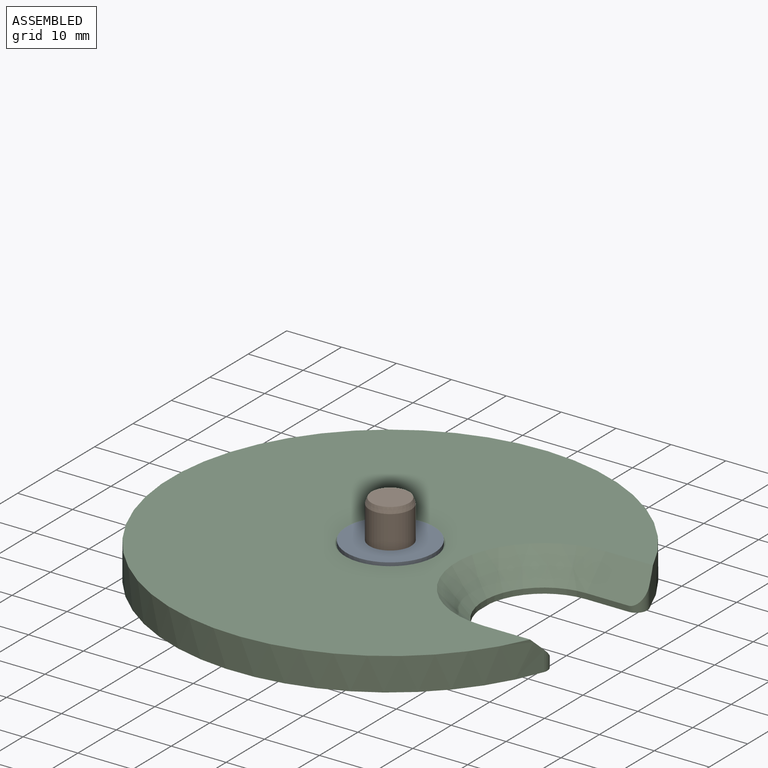
[diagram: assembled view]
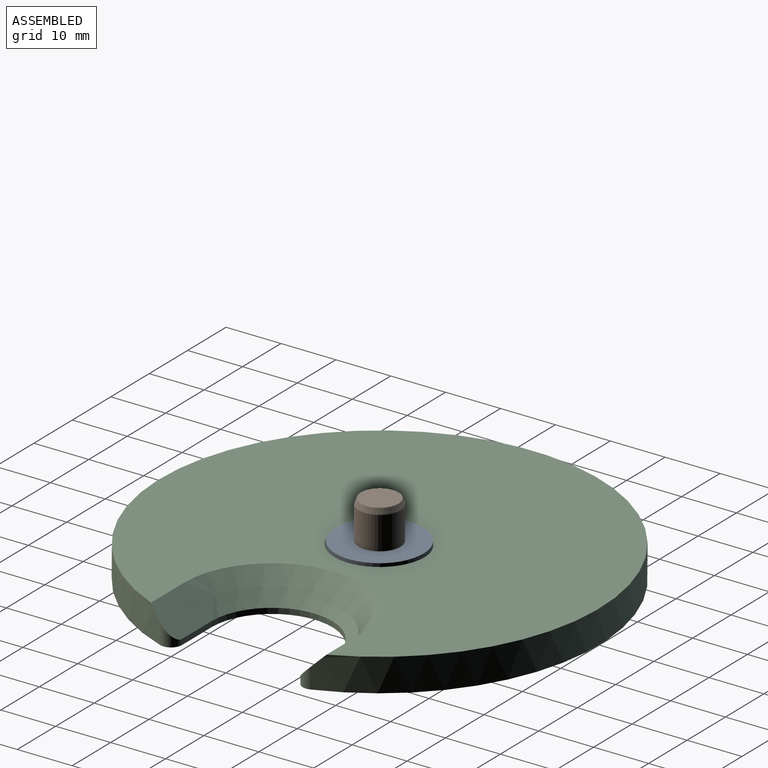
[diagram: assembled view, second angle]
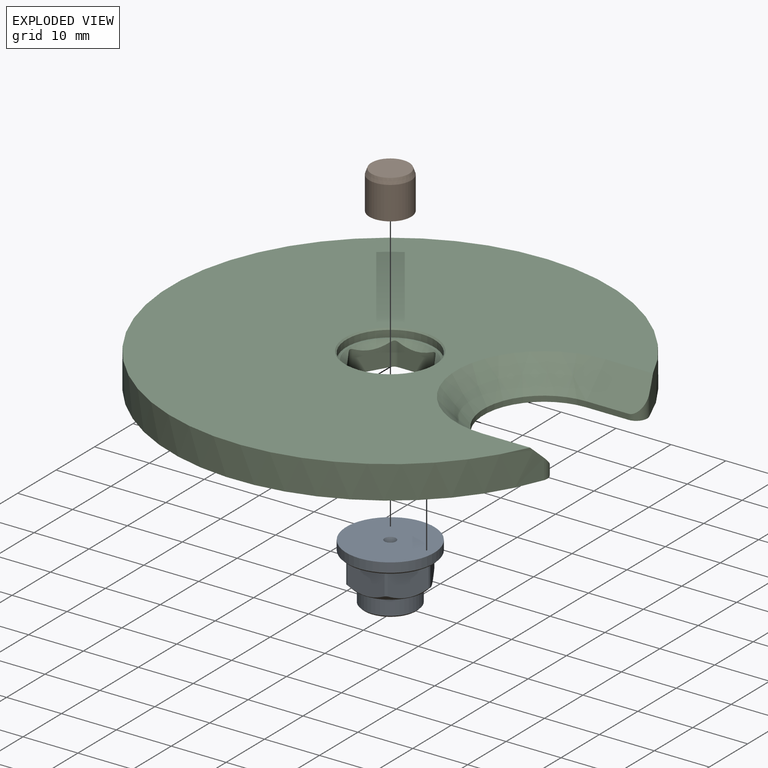
[diagram: exploded view]
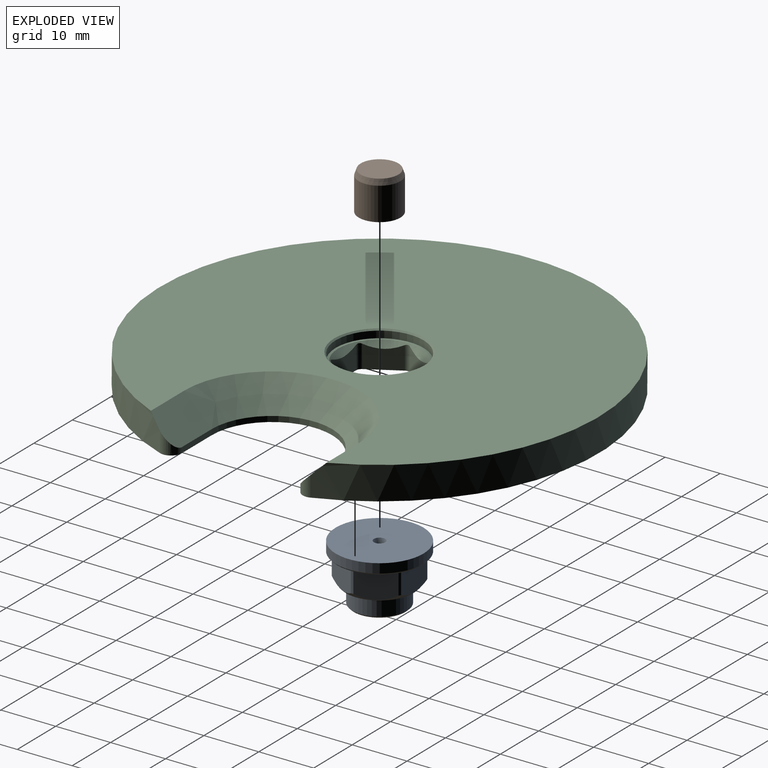
[diagram: exploded view, second angle]
ASSEMBLY  parts=3 mates=2
PART A: 34 faces, bbox 16x10.5x16 mm
  f0: cylinder r=7.15mm len=3.9mm, axis (0,-1,0), area 1.7mm2, adj f6,f17,f22,f25
  f1: cylinder r=7.15mm len=3.9mm, axis (0,-1,0), area 1.7mm2, adj f6,f21,f22,f26
  f2: cylinder r=7.15mm len=3.9mm, axis (0,-1,0), area 1.7mm2, adj f6,f20,f21,f27
  f3: cylinder r=7.15mm len=3.9mm, axis (0,-1,0), area 1.7mm2, adj f6,f19,f20,f28
  f4: cylinder r=7.15mm len=3.9mm, axis (0,-1,0), area 1.7mm2, adj f6,f18,f19,f23
  f5: cylinder r=7.15mm len=3.9mm, axis (0,-1,0), area 1.7mm2, adj f6,f17,f18,f24
  f6: cone r=6.15mm half-angle=45deg, axis (0,1,0), area 26.2mm2, adj f0,f1,f2,f3,f4,f5,f12,f17
  f7: plane 1x1mm, normal (0,1,0), area 0.8mm2, adj f8
  f8: cone r=1.05mm half-angle=20deg, axis (0,1,0), area 7.8mm2, adj f7,f9
  f9: plane 16x16mm, normal (0,1,0), area 197.6mm2, adj f8,f10
  f10: cylinder r=8mm len=16mm, axis (0,-1,0), area 85.5mm2, adj f9,f15
  f11: plane 15.4x15.4mm, normal (0,-1,0), area 48.8mm2, adj f15,f17,f18,f19,f20,f21,f22,f23
  f12: plane 12.3x12.3mm, normal (0,-1,0), area 37.1mm2, adj f6,f29
  f13: cylinder r=5mm len=10mm, axis (0,-1,0), area 97.4mm2, adj f16,f29
  f14: plane 9.4x9.4mm, normal (0,-1,0), area 53.5mm2, adj f16,f30
  f15: cone r=7.7mm half-angle=45deg, axis (0,1,0), area 20.9mm2, adj f10,f11
  f16: cone r=4.7mm half-angle=45deg, axis (0,1,0), area 12.9mm2, adj f13,f14
  f17: plane 6.26x4.91mm, normal (-0.87,0,0.5), area 30.8mm2, adj f0,f5,f6,f11,f24,f25
  f18: plane 6.26x4.91mm, normal (-0.87,0,-0.5), area 30.8mm2, adj f4,f5,f6,f11,f23,f24
  f19: plane 7.22x4.9mm, normal (0,0,-1), area 30.8mm2, adj f3,f4,f6,f11,f23,f28
  f20: plane 6.26x4.91mm, normal (0.87,0,-0.5), area 30.8mm2, adj f2,f3,f6,f11,f27,f28
  f21: plane 6.26x4.91mm, normal (0.87,0,0.5), area 30.8mm2, adj f1,f2,f6,f11,f26,f27
  f22: plane 7.22x4.9mm, normal (0,0,1), area 30.8mm2, adj f0,f1,f6,f11,f25,f26
  f23: torus R=7.25mm, axis (0,-1,0), area 0mm2, adj f4,f11,f18,f19
  f24: torus R=7.25mm, axis (0,-1,0), area 0mm2, adj f5,f11,f17,f18
  f25: torus R=7.25mm, axis (0,-1,0), area 0mm2, adj f0,f11,f17,f22
  f26: torus R=7.25mm, axis (0,-1,0), area 0mm2, adj f1,f11,f21,f22
  f27: torus R=7.25mm, axis (0,-1,0), area 0mm2, adj f2,f11,f20,f21
  f28: torus R=7.25mm, axis (0,-1,0), area 0mm2, adj f3,f11,f19,f20
  f29: torus R=5.1mm, axis (0,-1,0), area 5mm2, adj f12,f13
  f30: cone r=0mm half-angle=45deg, axis (0,-1,0), area 5.1mm2, adj f14,f32,f33
  f31: plane 4.1x3.6mm, normal (0,-1,0), area 12.3mm2, adj f32,f33
  f32: plane 8.3x2.69mm, normal (0,0,-1), area 21.4mm2, adj f30,f31,f33
  f33: cylinder r=2.05mm len=8.3mm, axis (0,-1,0), area 82.6mm2, adj f30,f31,f32
PART B: 6 faces, bbox 7.6x8.4x7.6 mm
  f0: plane 6.87x6.87mm, normal (0,1,0), area 37.1mm2, adj f5
  f1: cylinder r=3.8mm len=7.6mm, axis (0,-1,0), area 143.3mm2, adj f2,f5
  f2: plane 7.6x7.6mm, normal (0,-1,0), area 42.2mm2, adj f1,f3
  f3: cone r=1.01mm half-angle=20deg, axis (0,1,0), area 7.1mm2, adj f2,f4
  f4: plane 1x1mm, normal (0,-1,0), area 0.8mm2, adj f3
  f5: cone r=3.8mm half-angle=20deg, axis (0,-1,0), area 24.2mm2, adj f0,f1
PART C: 27 faces, bbox 77.7x6x80 mm
  f0: cylinder r=40mm len=80mm, axis (0,-1,0), area 1334.6mm2, adj f1,f2,f22,f24,f25,f26
  f1: plane 80x76.66mm, normal (0,1,0), area 4061.6mm2, adj f0,f6,f22,f23,f24
  f2: plane 80x77.71mm, normal (0,-1,0), area 4434.1mm2, adj f0,f7,f8,f9,f10,f11,f12,f13
  f3: cone r=7.55mm half-angle=45deg, axis (0,1,0), area 47.4mm2, adj f4,f7,f8,f9,f10,f11,f12,f13
  f4: plane 16x16mm, normal (0,1,0), area 22mm2, adj f3,f5
  f5: cylinder r=8mm len=16mm, axis (0,-1,0), area 62.8mm2, adj f4,f6
  f6: cone r=8.25mm half-angle=45deg, axis (0,1,0), area 18mm2, adj f1,f5
  f7: plane 5.51x4.19mm, normal (-0.87,0,-0.5), area 23.5mm2, adj f2,f3,f13,f18
  f8: plane 6.36x4.19mm, normal (0,0,-1), area 23.5mm2, adj f2,f3,f13,f14
  f9: plane 5.51x4.19mm, normal (0.87,0,-0.5), area 23.5mm2, adj f2,f3,f14,f15
  f10: plane 5.51x4.19mm, normal (0.87,0,0.5), area 23.5mm2, adj f2,f3,f15,f16
  f11: plane 6.36x4.19mm, normal (0,0,1), area 23.5mm2, adj f2,f3,f16,f17
  f12: plane 5.51x4.19mm, normal (-0.87,0,0.5), area 23.5mm2, adj f2,f3,f17,f18
  f13: cylinder r=1mm len=4.18mm, axis (0,1,0), area 4.4mm2, adj f2,f3,f7,f8
  f14: cylinder r=1mm len=4.18mm, axis (0,1,0), area 4.4mm2, adj f2,f3,f8,f9
  f15: cylinder r=1mm len=4.18mm, axis (0,1,0), area 4.4mm2, adj f2,f3,f9,f10
  f16: cylinder r=1mm len=4.18mm, axis (0,1,0), area 4.4mm2, adj f2,f3,f10,f11
  f17: cylinder r=1mm len=4.18mm, axis (0,1,0), area 4.4mm2, adj f2,f3,f11,f12
  f18: cylinder r=1mm len=4.18mm, axis (0,1,0), area 4.4mm2, adj f2,f3,f7,f12
  f19: plane 7.71x1mm, normal (0,0,-1), area 7.7mm2, adj f2,f21,f22,f25
  f20: plane 7.71x1mm, normal (0,0,1), area 7.7mm2, adj f2,f21,f24,f26
  f21: cylinder r=11mm len=22mm, axis (0,1,0), area 34.6mm2, adj f2,f19,f20,f23
  f22: plane 9.72x5.01mm, normal (0,0.71,-0.71), area 65.5mm2, adj f0,f1,f19,f23,f25
  f23: cone r=16mm half-angle=45deg, axis (0,1,0), area 299.9mm2, adj f1,f21,f22,f24
  f24: plane 9.72x5.01mm, normal (0,0.71,0.71), area 65.5mm2, adj f0,f1,f20,f23,f26
  f25: cylinder r=2mm len=3.68mm, axis (0,-1,0), area 7.8mm2, adj f0,f2,f19,f22
  f26: cylinder r=2mm len=3.68mm, axis (0,-1,0), area 7.8mm2, adj f0,f2,f20,f24
PLACE A rot(axis=(1,0,0),90deg) t=(0,-3,0.5)mm
PLACE B rot(axis=(1,0,0),90deg) t=(0,-3,3.5)mm
PLACE C rot(axis=(1,0,0),90deg) t=(0,-3,3)mm fixed
MATE fastened B.f1 <-> A.f0  axis (0,0,1) through (0,-3,3.5)mm
MATE fastened A.f0 <-> C.f0  axis (0,0,-1) through (0,-3,1.5)mm
